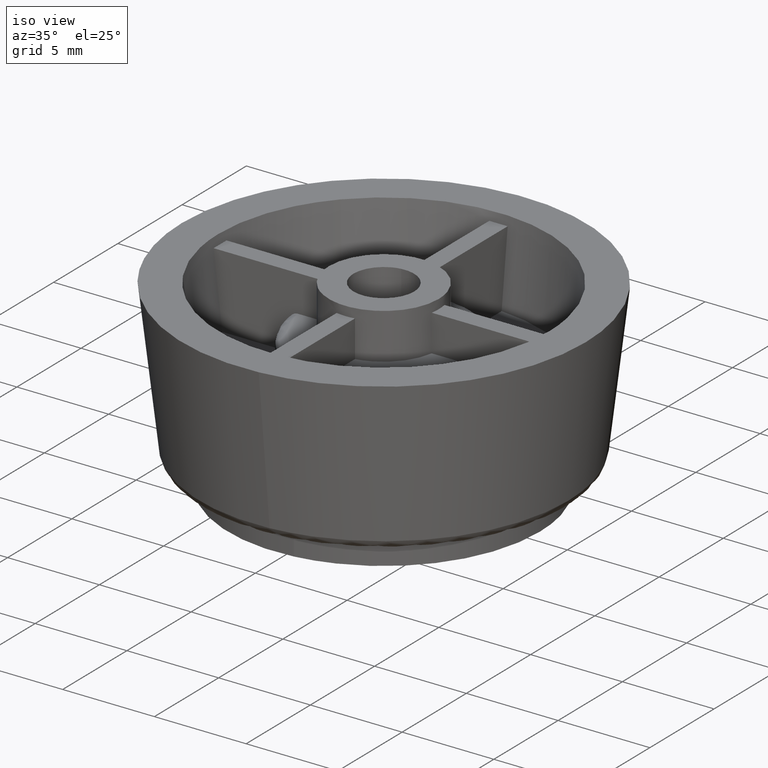
[diagram: clean part render]
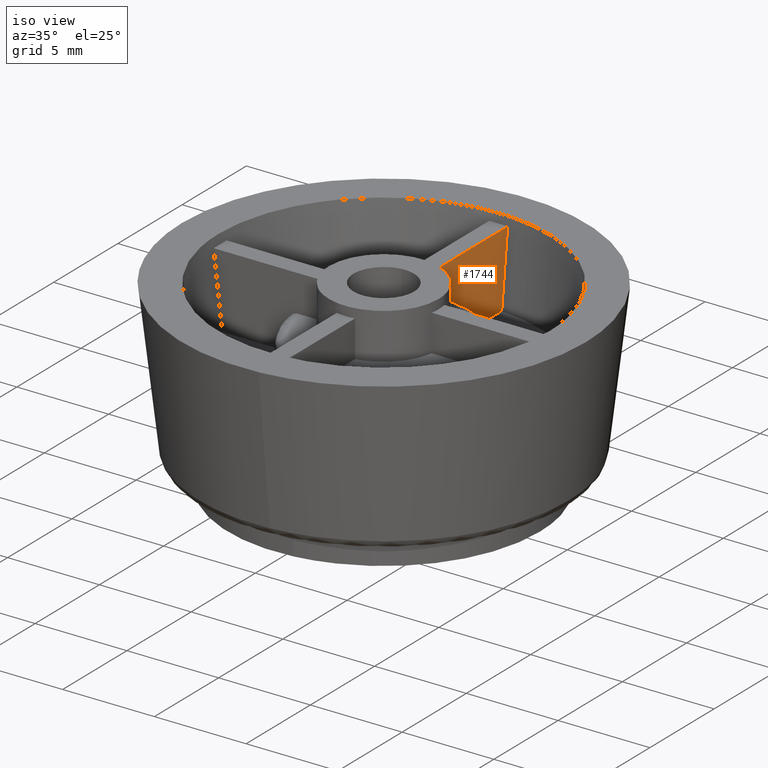
[diagram: same view with one face highlighted and labeled with its STEP entity id]
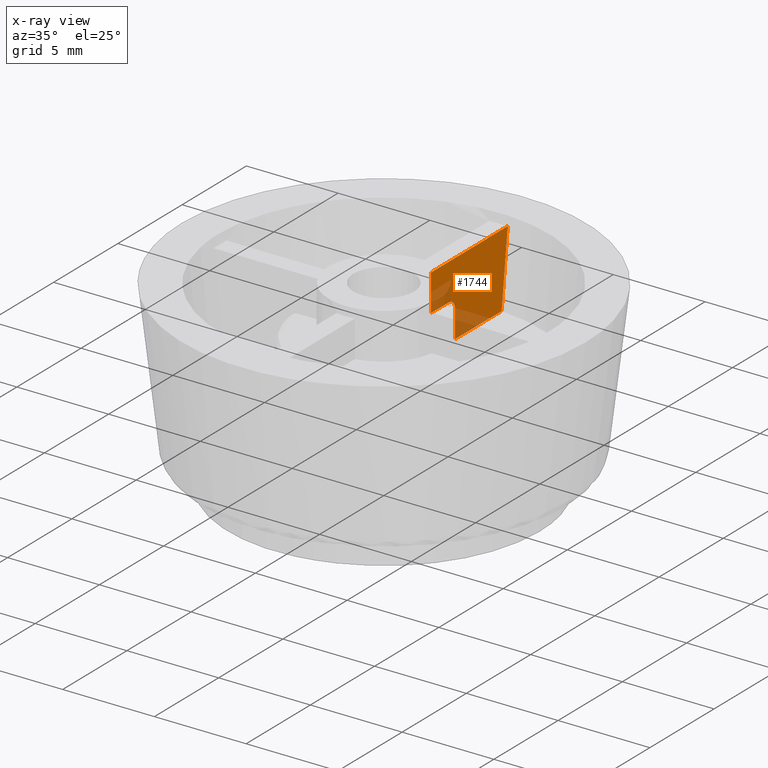
[diagram: x-ray of the same camera — body ghosted, the highlighted face saturated]
A machine part, iso view. The second image highlights one B-rep face of the part: STEP entity #1744.
The next image is the same camera in x-ray: the body ghosted, the highlighted face saturated — about 19% of this face is hidden behind the body in this view.
In plain terms, the highlighted face is a freeform B-spline surface patch.
Its self-contained STEP definition (entity closure, byte-faithful):
#975=CARTESIAN_POINT('',(0.500000000000000,2.958039891549810,7.500000000000000));
#976=VERTEX_POINT('',#975);
#990=CARTESIAN_POINT('',(0.500000000000000,2.958039891549805,9.500000000000000));
#991=VERTEX_POINT('',#990);
#992=CARTESIAN_POINT('',(0.500000000000000,2.958039891549805,9.500000000000000));
#993=CARTESIAN_POINT('',(0.500000000000000,2.958039891549810,7.500000000000000));
#994=QUASI_UNIFORM_CURVE('',1,(#992,#993),.UNSPECIFIED.,.F.,.U.);
#995=EDGE_CURVE('',#991,#976,#994,.T.);
#1264=CARTESIAN_POINT('',(0.500000000000000,8.927185231418811,9.500000000000000));
#1265=VERTEX_POINT('',#1264);
#1279=CARTESIAN_POINT('',(0.500000000000000,8.455818150834650,5.500000000000000));
#1280=VERTEX_POINT('',#1279);
#1281=CARTESIAN_POINT('',(0.500000000000000,8.927185231418811,9.499999999999998));
#1282=CARTESIAN_POINT('',(0.500000000000000,8.807796299210677,8.486782553954297));
#1283=CARTESIAN_POINT('',(0.500000000000000,8.688399992930616,7.473565976771918));
#1284=CARTESIAN_POINT('',(0.500000000000000,8.568995347583300,6.460350382352520));
#1285=CARTESIAN_POINT('',(0.500000000000000,8.531270460233564,6.140233488664786));
#1286=CARTESIAN_POINT('',(0.500000000000000,8.493544739291803,5.820116693212365));
#1287=CARTESIAN_POINT('',(0.500000000000000,8.455818150834654,5.500000000000000));
#1288=B_SPLINE_CURVE_WITH_KNOTS('',3,(#1281,#1282,#1283,#1284,#1285,#1286,#1287),.UNSPECIFIED.,.F.,.U.,(4,3,4),(0.010923951684167,0.013984632945860,0.014951629292304),.UNSPECIFIED.);
#1289=EDGE_CURVE('',#1265,#1280,#1288,.T.);
#1675=CARTESIAN_POINT('',(0.500000000000000,2.958039891549805,9.500000000000000));
#1676=CARTESIAN_POINT('',(0.500000000000000,8.927185231418811,9.500000000000000));
#1677=QUASI_UNIFORM_CURVE('',1,(#1675,#1676),.UNSPECIFIED.,.F.,.U.);
#1678=EDGE_CURVE('',#991,#1265,#1677,.T.);
#1690=CARTESIAN_POINT('',(0.500000000000000,2.659881226786822,5.300200007752776));
#1691=CARTESIAN_POINT('',(0.500000000000000,2.659881226786822,9.699800099535585));
#1692=CARTESIAN_POINT('',(0.500000000000000,9.225343736076841,5.300200007752776));
#1693=CARTESIAN_POINT('',(0.500000000000000,9.225343736076841,9.699800099535585));
#1694=B_SPLINE_SURFACE_WITH_KNOTS('',1,1,((#1690,#1692),(#1691,#1693)),.UNSPECIFIED.,.F.,.F.,.U.,(2,2),(2,2),(0.0,4.399600091782809),(0.0,6.565462509290018),.UNSPECIFIED.);
#1695=ORIENTED_EDGE('',*,*,#1289,.F.);
#1696=ORIENTED_EDGE('',*,*,#1678,.F.);
#1697=ORIENTED_EDGE('',*,*,#995,.T.);
#1698=CARTESIAN_POINT('',(0.500000000000000,4.321168823362496,7.500000000000000));
#1699=VERTEX_POINT('',#1698);
#1700=CARTESIAN_POINT('',(0.500000000000000,4.321168823362496,7.500000000000000));
#1701=CARTESIAN_POINT('',(0.500000000000000,2.958039891549810,7.500000000000000));
#1702=QUASI_UNIFORM_CURVE('',1,(#1700,#1701),.UNSPECIFIED.,.F.,.U.);
#1703=EDGE_CURVE('',#1699,#976,#1702,.T.);
#1704=ORIENTED_EDGE('',*,*,#1703,.F.);
#1705=CARTESIAN_POINT('',(0.500000000000000,4.824157957612910,7.0));
#1706=VERTEX_POINT('',#1705);
#1707=CARTESIAN_POINT('',(0.500000000000000,4.824157957612910,7.0));
#1708=CARTESIAN_POINT('',(0.500000000000000,4.824157957612935,7.032682623571015));
#1709=CARTESIAN_POINT('',(0.500000000000000,4.820968153100822,7.065265754354404));
#1710=CARTESIAN_POINT('',(0.500000000000000,4.807949753201066,7.130224946237718));
#1711=CARTESIAN_POINT('',(0.500000000000000,4.798325595366556,7.161555913515394));
#1712=CARTESIAN_POINT('',(0.500000000000000,4.779442092357812,7.206794490367465));
#1713=CARTESIAN_POINT('',(0.500000000000000,4.772399546948273,7.221585130218744));
#1714=CARTESIAN_POINT('',(0.500000000000000,4.756785939476205,7.250576115146900));
#1715=CARTESIAN_POINT('',(0.500000000000000,4.748181038272666,7.264810965628993));
#1716=CARTESIAN_POINT('',(0.500000000000000,4.720614786465848,7.305699308595137));
#1717=CARTESIAN_POINT('',(0.500000000000000,4.699774272001492,7.330863044105440));
#1718=CARTESIAN_POINT('',(0.500000000000000,4.653221805879428,7.377046631881691));
#1719=CARTESIAN_POINT('',(0.500000000000000,4.627317924514075,7.398111125847948));
#1720=CARTESIAN_POINT('',(0.500000000000000,4.572754122337948,7.434232553741875));
#1721=CARTESIAN_POINT('',(0.500000000000000,4.543870434620352,7.449561429163289));
#1722=CARTESIAN_POINT('',(0.500000000000000,4.482828028923404,7.474633633419303));
#1723=CARTESIAN_POINT('',(0.500000000000000,4.451162392302462,7.484120910971768));
#1724=CARTESIAN_POINT('',(0.500000000000000,4.387061020142461,7.496758606523577));
#1725=CARTESIAN_POINT('',(0.500000000000000,4.354161604594413,7.500000000000000));
#1726=CARTESIAN_POINT('',(0.500000000000000,4.321168823362496,7.500000000000001));
#1727=B_SPLINE_CURVE_WITH_KNOTS('',3,(#1707,#1708,#1709,#1710,#1711,#1712,#1713,#1714,#1715,#1716,#1717,#1718,#1719,#1720,#1721,#1722,#1723,#1724,#1725,#1726),.UNSPECIFIED.,.F.,.U.,(4,2,2,2,2,2,2,2,2,4),(0.0,0.125000000000001,0.250000000000002,0.312500000000003,0.375000000000003,0.500000000000003,0.625000000000002,0.750000000000001,0.875000000000001,1.0),.UNSPECIFIED.);
#1728=EDGE_CURVE('',#1706,#1699,#1727,.T.);
#1729=ORIENTED_EDGE('',*,*,#1728,.F.);
#1730=CARTESIAN_POINT('',(0.500000001228962,4.824157981455111,5.500000000000000));
#1731=VERTEX_POINT('',#1730);
#1732=CARTESIAN_POINT('',(0.500000001228962,4.824157981455111,5.500000000000000));
#1733=CARTESIAN_POINT('',(0.500000000000000,4.824157957612910,7.0));
#1734=QUASI_UNIFORM_CURVE('',1,(#1732,#1733),.UNSPECIFIED.,.F.,.U.);
#1735=EDGE_CURVE('',#1731,#1706,#1734,.T.);
#1736=ORIENTED_EDGE('',*,*,#1735,.F.);
#1737=CARTESIAN_POINT('',(0.500000001228962,4.824157981455111,5.500000000000000));
#1738=CARTESIAN_POINT('',(0.500000000000000,8.455818150834650,5.500000000000000));
#1739=QUASI_UNIFORM_CURVE('',1,(#1737,#1738),.UNSPECIFIED.,.F.,.U.);
#1740=EDGE_CURVE('',#1731,#1280,#1739,.T.);
#1741=ORIENTED_EDGE('',*,*,#1740,.T.);
#1742=EDGE_LOOP('',(#1695,#1696,#1697,#1704,#1729,#1736,#1741));
#1743=FACE_OUTER_BOUND('',#1742,.T.);
#1744=ADVANCED_FACE('',(#1743),#1694,.F.);